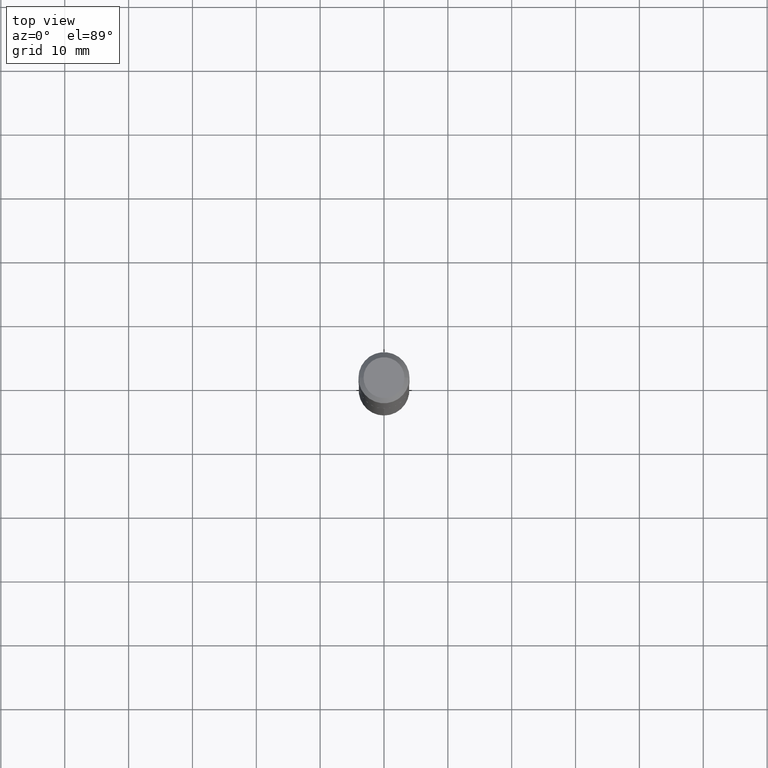
[diagram: clean part render]
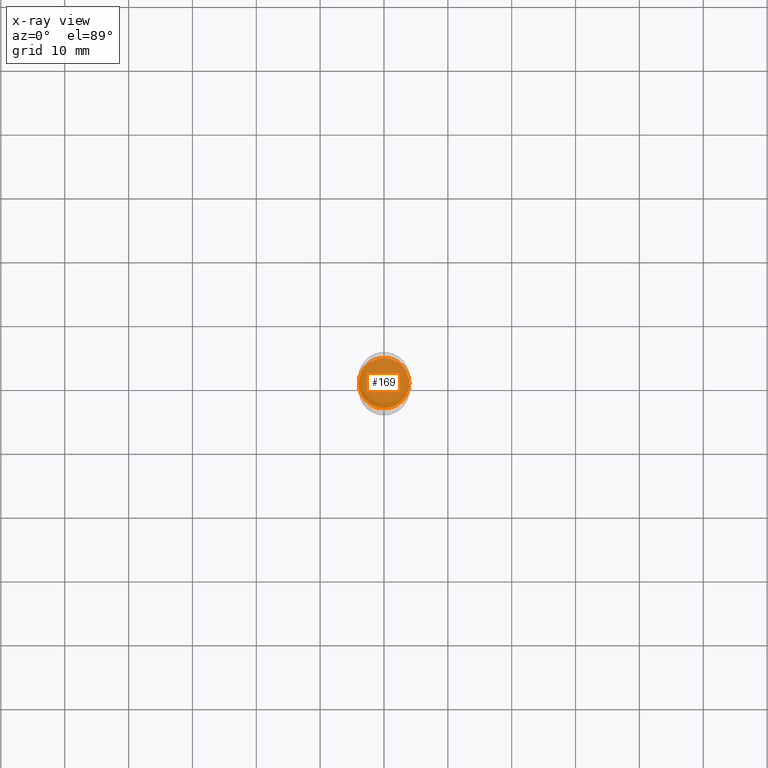
[diagram: x-ray — body ghosted, one internal face saturated and labeled with its STEP entity id]
A machine part, top view, then the same camera in x-ray: the body is ghosted and one INTERNAL B-rep face — a face not visible from any outside direction — is saturated and labeled: STEP entity #169.
In plain terms, the highlighted planar face has unit normal (-0, 0, 1).
Its self-contained STEP definition (entity closure, byte-faithful):
#1 = DIRECTION ( 'NONE',  ( -2.445468806185136597E-29, 3.491481338843145583E-15, 1.000000000000000000 ) ) ;
#7 = AXIS2_PLACEMENT_3D ( 'NONE', #339, #1, #484 ) ;
#22 = FACE_OUTER_BOUND ( 'NONE', #199, .T. ) ;
#117 = DIRECTION ( 'NONE',  ( -2.445468806185136597E-29, 3.491481338843145583E-15, 1.000000000000000000 ) ) ;
#120 = CARTESIAN_POINT ( 'NONE',  ( 4.813905344975441835E-29, -6.872981015512731707E-15, -1.968500000000000139 ) ) ;
#155 = VERTEX_POINT ( 'NONE', #291 ) ;
#169 = ADVANCED_FACE ( 'NONE', ( #22 ), #438, .F. ) ;
#177 = AXIS2_PLACEMENT_3D ( 'NONE', #186, #179, #371 ) ;
#179 = DIRECTION ( 'NONE',  ( -2.438088387897960049E-29, 3.491481338843145188E-15, 1.000000000000000000 ) ) ;
#186 = CARTESIAN_POINT ( 'NONE',  ( -8.165768403937443832E-32, -1.377846130511542693E-14, -1.968499999999999694 ) ) ;
#199 = EDGE_LOOP ( 'NONE', ( #229, #490 ) ) ;
#207 = CIRCLE ( 'NONE', #274, 0.1557499999999999996 ) ;
#216 = CIRCLE ( 'NONE', #7, 0.1557499999999999996 ) ;
#229 = ORIENTED_EDGE ( 'NONE', *, *, #384, .F. ) ;
#274 = AXIS2_PLACEMENT_3D ( 'NONE', #120, #117, #379 ) ;
#291 = CARTESIAN_POINT ( 'NONE',  ( 0.1557499999999999996, -7.960577452562368662E-15, -1.968500000000000139 ) ) ;
#301 = CARTESIAN_POINT ( 'NONE',  ( -0.1557499999999999996, -5.763661477392264864E-15, -1.968500000000000139 ) ) ;
#339 = CARTESIAN_POINT ( 'NONE',  ( 4.813905344975441835E-29, -6.872981015512731707E-15, -1.968500000000000139 ) ) ;
#371 = DIRECTION ( 'NONE',  ( 1.000000000000000000, -6.982962677686265922E-15, 4.876176775795935793E-29 ) ) ;
#376 = EDGE_CURVE ( 'NONE', #383, #155, #216, .T. ) ;
#379 = DIRECTION ( 'NONE',  ( 1.000000000000000000, -6.982962677686265922E-15, 0.000000000000000000 ) ) ;
#383 = VERTEX_POINT ( 'NONE', #301 ) ;
#384 = EDGE_CURVE ( 'NONE', #155, #383, #207, .T. ) ;
#438 = PLANE ( 'NONE',  #177 ) ;
#484 = DIRECTION ( 'NONE',  ( 1.000000000000000000, -6.982962677686265922E-15, 0.000000000000000000 ) ) ;
#490 = ORIENTED_EDGE ( 'NONE', *, *, #376, .F. ) ;